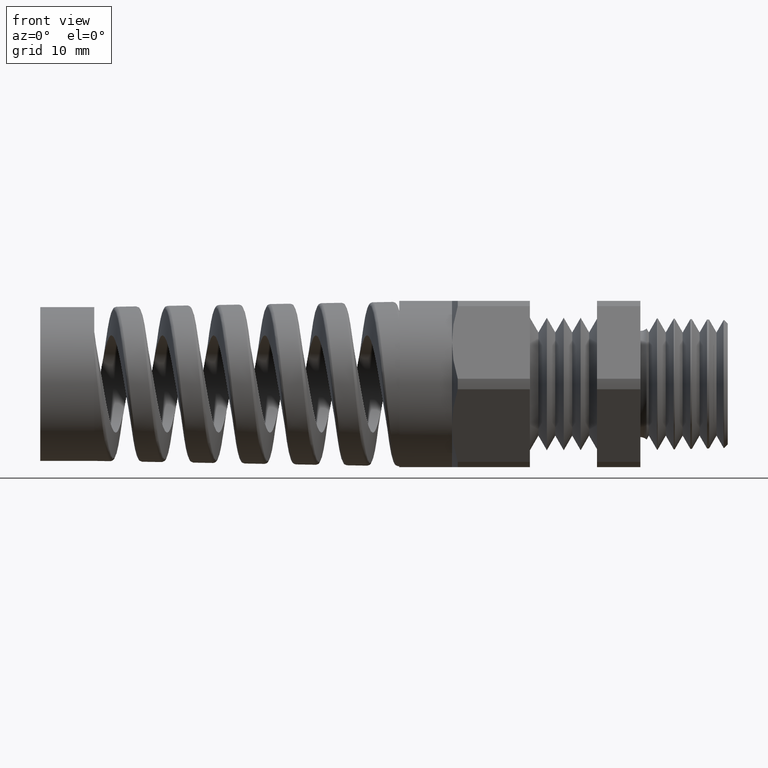
[diagram: clean part render]
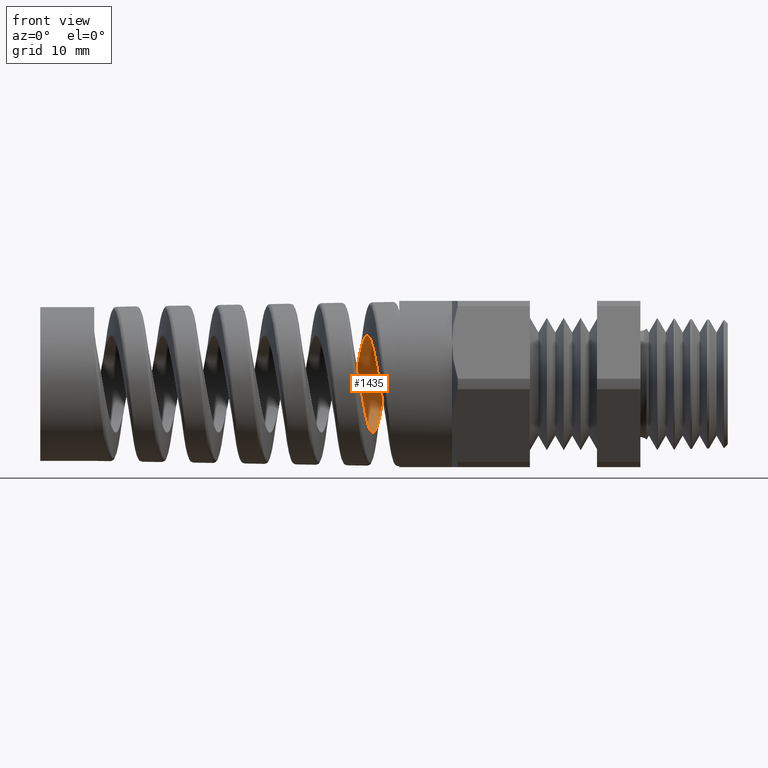
[diagram: same view with one face highlighted and labeled with its STEP entity id]
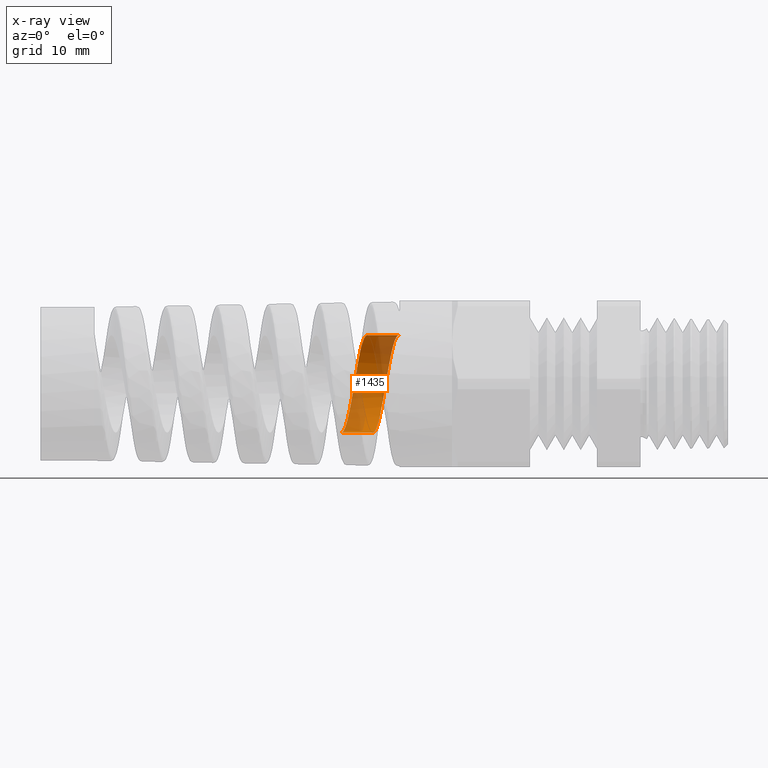
[diagram: x-ray of the same camera — body ghosted, the highlighted face saturated]
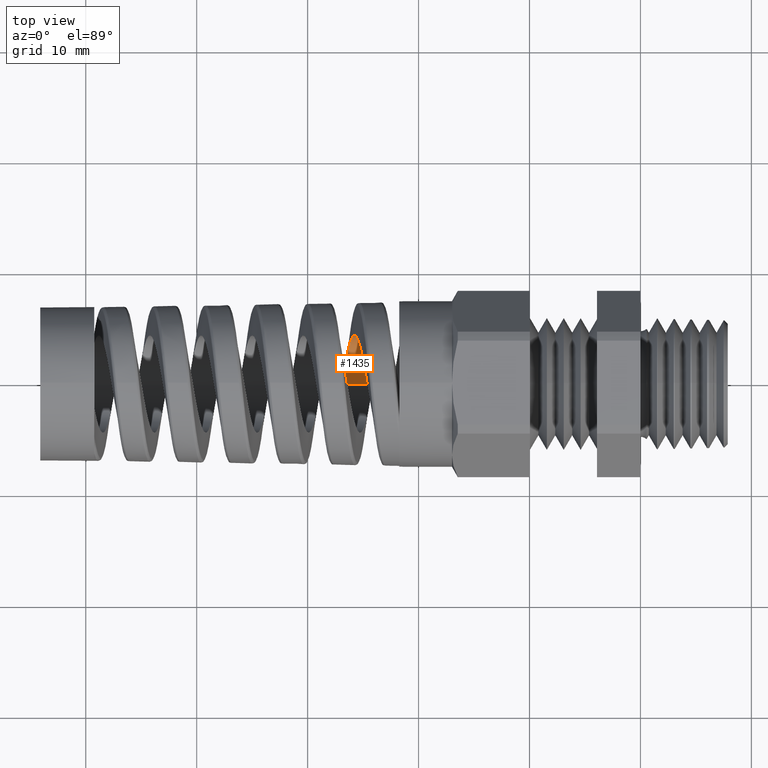
[diagram: same view with one face highlighted and labeled with its STEP entity id]
A machine part, front view. The second image highlights one B-rep face of the part: STEP entity #1435.
The next image is the same camera in x-ray: the body ghosted, the highlighted face saturated — about 45% of this face is hidden behind the body in this view.
A second angle (top view) of the same face is appended — the face is thin or edge-on in the first view.
In plain terms, the highlighted cylindrical surface (partial cylindrical patch) has radius 4.3901 mm, axis along (1, 0, 0).
Its self-contained STEP definition (entity closure, byte-faithful):
#1251 = VERTEX_POINT ( 'NONE', #8453 ) ;
#1337 = EDGE_CURVE ( 'NONE', #1251, #1344, #9039, .T. ) ;
#1339 = EDGE_CURVE ( 'NONE', #1362, #1353, #9035, .T. ) ;
#1344 = VERTEX_POINT ( 'NONE', #9101 ) ;
#1353 = VERTEX_POINT ( 'NONE', #9085 ) ;
#1362 = VERTEX_POINT ( 'NONE', #9176 ) ;
#1426 = ORIENTED_EDGE ( 'NONE', *, *, #1337, .T. ) ;
#1427 = ORIENTED_EDGE ( 'NONE', *, *, #1428, .F. ) ;
#1428 = EDGE_CURVE ( 'NONE', #1353, #1344, #9398, .T. ) ;
#1429 = ORIENTED_EDGE ( 'NONE', *, *, #1339, .F. ) ;
#1433 = EDGE_LOOP ( 'NONE', ( #1429, #1464, #1426, #1427 ) ) ;
#1435 = ADVANCED_FACE ( 'NONE', ( #9451 ), #9449, .F. ) ;
#1464 = ORIENTED_EDGE ( 'NONE', *, *, #1465, .F. ) ;
#1465 = EDGE_CURVE ( 'NONE', #1251, #1362, #9526, .T. ) ;
#8453 = CARTESIAN_POINT ( 'NONE',  ( -1.060760331418579800, -1.604672571684673000E-013, -0.1728399223203811200 ) ) ;
#9032 = DIRECTION ( 'NONE',  ( 1.000000000000000000, 0.0000000000000000000, 0.0000000000000000000 ) ) ;
#9033 = VECTOR ( 'NONE', #9032, 39.37007874015748100 ) ;
#9034 = CARTESIAN_POINT ( 'NONE',  ( 0.4924815508901369000, 2.116678576345319000E-017, 0.1728399223203811500 ) ) ;
#9035 = LINE ( 'NONE', #9034, #9033 ) ;
#9036 = DIRECTION ( 'NONE',  ( 1.000000000000000000, 0.0000000000000000000, 0.0000000000000000000 ) ) ;
#9037 = VECTOR ( 'NONE', #9036, 39.37007874015748100 ) ;
#9038 = CARTESIAN_POINT ( 'NONE',  ( 0.4924815508901369000, 0.0000000000000000000, -0.1728399223203811500 ) ) ;
#9039 = LINE ( 'NONE', #9038, #9037 ) ;
#9085 = CARTESIAN_POINT ( 'NONE',  ( -0.8582097129043351200, -5.843081377448651500E-013, 0.1728399223203811500 ) ) ;
#9101 = CARTESIAN_POINT ( 'NONE',  ( -0.9494884975239917800, -4.804410894130986000E-016, -0.1728399223203811500 ) ) ;
#9176 = CARTESIAN_POINT ( 'NONE',  ( -0.9700448837884126900, -3.893843806281847700E-014, 0.1728399223203811500 ) ) ;
#9364 = CARTESIAN_POINT ( 'NONE',  ( -0.9494884975239917800, -4.804410894130986000E-016, -0.1728399223203811500 ) ) ;
#9365 = CARTESIAN_POINT ( 'NONE',  ( -0.9475952937902173400, 0.01126212421948520400, -0.1728399223203805600 ) ) ;
#9366 = CARTESIAN_POINT ( 'NONE',  ( -0.9456806829813412300, 0.02266221893118101600, -0.1717228665345874900 ) ) ;
#9367 = CARTESIAN_POINT ( 'NONE',  ( -0.9418697853437337800, 0.04491198474087632800, -0.1672878736919559700 ) ) ;
#9368 = CARTESIAN_POINT ( 'NONE',  ( -0.9399860207978125700, 0.05568951410923966100, -0.1640113887084807800 ) ) ;
#9369 = CARTESIAN_POINT ( 'NONE',  ( -0.9361886044969955900, 0.07654831308661798300, -0.1553750731983759800 ) ) ;
#9370 = CARTESIAN_POINT ( 'NONE',  ( -0.9342587955619252600, 0.08670211930287521900, -0.1499460371336724700 ) ) ;
#9371 = CARTESIAN_POINT ( 'NONE',  ( -0.9304631261652653900, 0.1054690811028594200, -0.1373948487936180500 ) ) ;
#9372 = CARTESIAN_POINT ( 'NONE',  ( -0.9285804321570924100, 0.1141790269579468100, -0.1302514900149387400 ) ) ;
#9373 = CARTESIAN_POINT ( 'NONE',  ( -0.9247698640994677100, 0.1302223980408240800, -0.1142122055503369000 ) ) ;
#9374 = CARTESIAN_POINT ( 'NONE',  ( -0.9228540913185365700, 0.1374831687877110200, -0.1053510891011411600 ) ) ;
#9375 = CARTESIAN_POINT ( 'NONE',  ( -0.9190655757109089700, 0.1499918057908511400, -0.08661946588559878100 ) ) ;
#9376 = CARTESIAN_POINT ( 'NONE',  ( -0.9171717464750406300, 0.1553299785814208600, -0.07665878323457431300 ) ) ;
#9377 = CARTESIAN_POINT ( 'NONE',  ( -0.9133326109898388700, 0.1640633790585276400, -0.05556238786272620800 ) ) ;
#9378 = CARTESIAN_POINT ( 'NONE',  ( -0.9114462244648000600, 0.1673242025372186900, -0.04475631187732631600 ) ) ;
#9379 = CARTESIAN_POINT ( 'NONE',  ( -0.9076622185008452700, 0.1717177882788337700, -0.02266092222753302400 ) ) ;
#9380 = CARTESIAN_POINT ( 'NONE',  ( -0.9057445611322617600, 0.1728455891691634500, -0.01124856935199312400 ) ) ;
#9381 = CARTESIAN_POINT ( 'NONE',  ( -0.9019316199724103400, 0.1728342119414480700, 0.01142204842751351800 ) ) ;
#9382 = CARTESIAN_POINT ( 'NONE',  ( -0.9000442862809130400, 0.1717238160313841200, 0.02262968097021117800 ) ) ;
#9383 = CARTESIAN_POINT ( 'NONE',  ( -0.8962461351948826100, 0.1673192546233731300, 0.04478212238687462300 ) ) ;
#9384 = CARTESIAN_POINT ( 'NONE',  ( -0.8943215763114548100, 0.1639737201256031800, 0.05579957981984298700 ) ) ;
#9385 = CARTESIAN_POINT ( 'NONE',  ( -0.8905307801269490800, 0.1553266803671513600, 0.07664591552079914900 ) ) ;
#9386 = CARTESIAN_POINT ( 'NONE',  ( -0.8886471216225754200, 0.1500191775690436200, 0.08658365467384024300 ) ) ;
#9387 = CARTESIAN_POINT ( 'NONE',  ( -0.8848291491289628200, 0.1374070622855401200, 0.1054598602750295600 ) ) ;
#9388 = CARTESIAN_POINT ( 'NONE',  ( -0.8829120060179290700, 0.1301411902972408100, 0.1142966142229312600 ) ) ;
#9389 = CARTESIAN_POINT ( 'NONE',  ( -0.8791242931768660200, 0.1142106922980512000, 0.1302166010906754000 ) ) ;
#9390 = CARTESIAN_POINT ( 'NONE',  ( -0.8772310420768417700, 0.1054607095813579100, 0.1374109247989998000 ) ) ;
#9391 = CARTESIAN_POINT ( 'NONE',  ( -0.8733995593421073300, 0.08648974160840235100, 0.1500774737128516300 ) ) ;
#9392 = CARTESIAN_POINT ( 'NONE',  ( -0.8715132288145611700, 0.07653135288234616500, 0.1553818063626189200 ) ) ;
#9393 = CARTESIAN_POINT ( 'NONE',  ( -0.8677241578312736600, 0.05571404268088027400, 0.1640015218547243900 ) ) ;
#9394 = CARTESIAN_POINT ( 'NONE',  ( -0.8658005946227396200, 0.04472989614733548900, 0.1673355643673624700 ) ) ;
#9395 = CARTESIAN_POINT ( 'NONE',  ( -0.8619900440907185500, 0.02250726008277613800, 0.1717421845530719400 ) ) ;
#9396 = CARTESIAN_POINT ( 'NONE',  ( -0.8601076335109705300, 0.01129867874007723900, 0.1728399223204193100 ) ) ;
#9397 = CARTESIAN_POINT ( 'NONE',  ( -0.8582097129043351200, -5.843081377448651500E-013, 0.1728399223203811500 ) ) ;
#9398 = B_SPLINE_CURVE_WITH_KNOTS ( 'NONE', 3,
 ( #9397, #9396, #9395, #9394, #9393, #9392, #9391, #9390, #9389, #9388, #9387, #9386, #9385, #9384, #9383, #9382, #9381, #9380, #9379, #9378, #9377, #9376, #9375, #9374, #9373, #9372, #9371, #9370, #9369, #9368, #9367, #9366, #9365, #9364 ),
 .UNSPECIFIED., .F., .F.,
 ( 4, 2, 2, 2, 2, 2, 2, 2, 2, 2, 2, 2, 2, 2, 2, 2, 4 ),
 ( 0.001899350927779849600, 0.002769360043683315900, 0.003639369159586783000, 0.004509378275490250100, 0.005379387391393718900, 0.006249396507297186000, 0.007119405623200653900, 0.007989414739104121900, 0.008859423855007590700, 0.009729432970911056100, 0.01059944208681452500, 0.01146945120271799400, 0.01233946031862146300, 0.01320946943452493100, 0.01407947855042839700, 0.01494948766633186600, 0.01581949678223533400 ),
 .UNSPECIFIED. ) ;
#9446 = DIRECTION ( 'NONE',  ( 0.0000000000000000000, 0.0000000000000000000, -1.000000000000000000 ) ) ;
#9447 = DIRECTION ( 'NONE',  ( 1.000000000000000000, 0.0000000000000000000, 0.0000000000000000000 ) ) ;
#9448 = AXIS2_PLACEMENT_3D ( 'NONE', #9450, #9447, #9446 ) ;
#9449 = CYLINDRICAL_SURFACE ( 'NONE', #9448, 0.1728399223203811500 ) ;
#9450 = CARTESIAN_POINT ( 'NONE',  ( 0.4924815508901369000, 0.0000000000000000000, 0.0000000000000000000 ) ) ;
#9451 = FACE_OUTER_BOUND ( 'NONE', #1433, .T. ) ;
#9513 = CARTESIAN_POINT ( 'NONE',  ( -1.022979819103796900, 0.1672908887059423000, -0.04491115694394271600 ) ) ;
#9514 = CARTESIAN_POINT ( 'NONE',  ( -1.024852402749741200, 0.1640075399196382300, -0.05569678612407359700 ) ) ;
#9515 = CARTESIAN_POINT ( 'NONE',  ( -1.028616419999546900, 0.1553880019490777600, -0.07651910862860276900 ) ) ;
#9516 = CARTESIAN_POINT ( 'NONE',  ( -1.030528749757954300, 0.1499739168337669000, -0.08665708406504943300 ) ) ;
#9517 = CARTESIAN_POINT ( 'NONE',  ( -1.034312573805833600, 0.1373985467533388200, -0.1054668919575675700 ) ) ;
#9518 = CARTESIAN_POINT ( 'NONE',  ( -1.036184962649386900, 0.1302562137705189900, -0.1141700234748911600 ) ) ;
#9519 = CARTESIAN_POINT ( 'NONE',  ( -1.039960827280762300, 0.1142727281323306200, -0.1301661211348128800 ) ) ;
#9520 = CARTESIAN_POINT ( 'NONE',  ( -1.041871316082294600, 0.1053808830026373000, -0.1374610928112056400 ) ) ;
#9521 = CARTESIAN_POINT ( 'NONE',  ( -1.045636317291871000, 0.08663585454789812800, -0.1499830365275415500 ) ) ;
#9522 = CARTESIAN_POINT ( 'NONE',  ( -1.047511243466327600, 0.07670160737563025400, -0.1553056858480613100 ) ) ;
#9523 = CARTESIAN_POINT ( 'NONE',  ( -1.053217183080135100, 0.04518298366607895900, -0.1683732528249447800 ) ) ;
#9524 = CARTESIAN_POINT ( 'NONE',  ( -1.056960934948330700, 0.02274969694660400700, -0.1728399223204022100 ) ) ;
#9525 = CARTESIAN_POINT ( 'NONE',  ( -1.060760331418579800, -1.604672571684673000E-013, -0.1728399223203811200 ) ) ;
#9526 = B_SPLINE_CURVE_WITH_KNOTS ( 'NONE', 3,
 ( #9525, #9524, #9523, #9522, #9521, #9520, #9519, #9518, #9517, #9516, #9515, #9514, #9513, #9579, #9578, #9577, #9576, #9575, #9574, #9573, #9572, #9571, #9570, #9569, #9568, #9567, #9566, #9565, #9564, #9563, #9562, #9561 ),
 .UNSPECIFIED., .F., .F.,
 ( 4, 2, 2, 2, 2, 2, 2, 2, 2, 2, 2, 2, 2, 2, 2, 4 ),
 ( 0.1349452214509981300, 0.1366887783041383100, 0.1375605567307083800, 0.1384323351572784900, 0.1393041135838485600, 0.1401758920104186300, 0.1410476704369887400, 0.1419194488635588100, 0.1427912272901289100, 0.1436630057166989900, 0.1445347841432690600, 0.1454065625698391700, 0.1462783409964092400, 0.1471501194229793100, 0.1480218978495494200, 0.1488936762761194900 ),
 .UNSPECIFIED. ) ;
#9561 = CARTESIAN_POINT ( 'NONE',  ( -0.9700448837884126900, -3.893843806281847700E-014, 0.1728399223203811500 ) ) ;
#9562 = CARTESIAN_POINT ( 'NONE',  ( -0.9719407711404042200, 0.01135535846221312500, 0.1728399223203836400 ) ) ;
#9563 = CARTESIAN_POINT ( 'NONE',  ( -0.9738389357351006100, 0.02272611387828814300, 0.1717087830919913600 ) ) ;
#9564 = CARTESIAN_POINT ( 'NONE',  ( -0.9776002145606705900, 0.04480833355157058700, 0.1673098792279543200 ) ) ;
#9565 = CARTESIAN_POINT ( 'NONE',  ( -0.9794878286064390100, 0.05566566081181556500, 0.1640268665043008700 ) ) ;
#9566 = CARTESIAN_POINT ( 'NONE',  ( -0.9832988381760463500, 0.07671772346341745900, 0.1552992905181039800 ) ) ;
#9567 = CARTESIAN_POINT ( 'NONE',  ( -0.9851736468068805800, 0.08665693515328409800, 0.1499704066074126800 ) ) ;
#9568 = CARTESIAN_POINT ( 'NONE',  ( -0.9889354588834413700, 0.1053906387099616800, 0.1374531212466981200 ) ) ;
#9569 = CARTESIAN_POINT ( 'NONE',  ( -0.9908432692586514000, 0.1142703540071742800, 0.1301694101876032000 ) ) ;
#9570 = CARTESIAN_POINT ( 'NONE',  ( -0.9946251784603429300, 0.1302725231444334900, 0.1141527873820716600 ) ) ;
#9571 = CARTESIAN_POINT ( 'NONE',  ( -0.9964986821803697400, 0.1374124422611225600, 0.1054473809776711300 ) ) ;
#9572 = CARTESIAN_POINT ( 'NONE',  ( -1.000278079347940200, 0.1499720599647949800, 0.08665858684015341500 ) ) ;
#9573 = CARTESIAN_POINT ( 'NONE',  ( -1.002191369530078100, 0.1553932741537094300, 0.07650943327803726200 ) ) ;
#9574 = CARTESIAN_POINT ( 'NONE',  ( -1.005956468914281700, 0.1640160050472222200, 0.05567327115488990300 ) ) ;
#9575 = CARTESIAN_POINT ( 'NONE',  ( -1.007828036969725200, 0.1672944297412430600, 0.04489275355990810000 ) ) ;
#9576 = CARTESIAN_POINT ( 'NONE',  ( -1.011624417528050200, 0.1717322071813438000, 0.02260164952525315800 ) ) ;
#9577 = CARTESIAN_POINT ( 'NONE',  ( -1.013522774573989900, 0.1728405830866166500, 0.01124697431578073500 ) ) ;
#9578 = CARTESIAN_POINT ( 'NONE',  ( -1.017287852430477400, 0.1728392609581038700, -0.01126727404645560900 ) ) ;
#9579 = CARTESIAN_POINT ( 'NONE',  ( -1.019177910693568300, 0.1717364620442243300, -0.02257966046246362100 ) ) ;